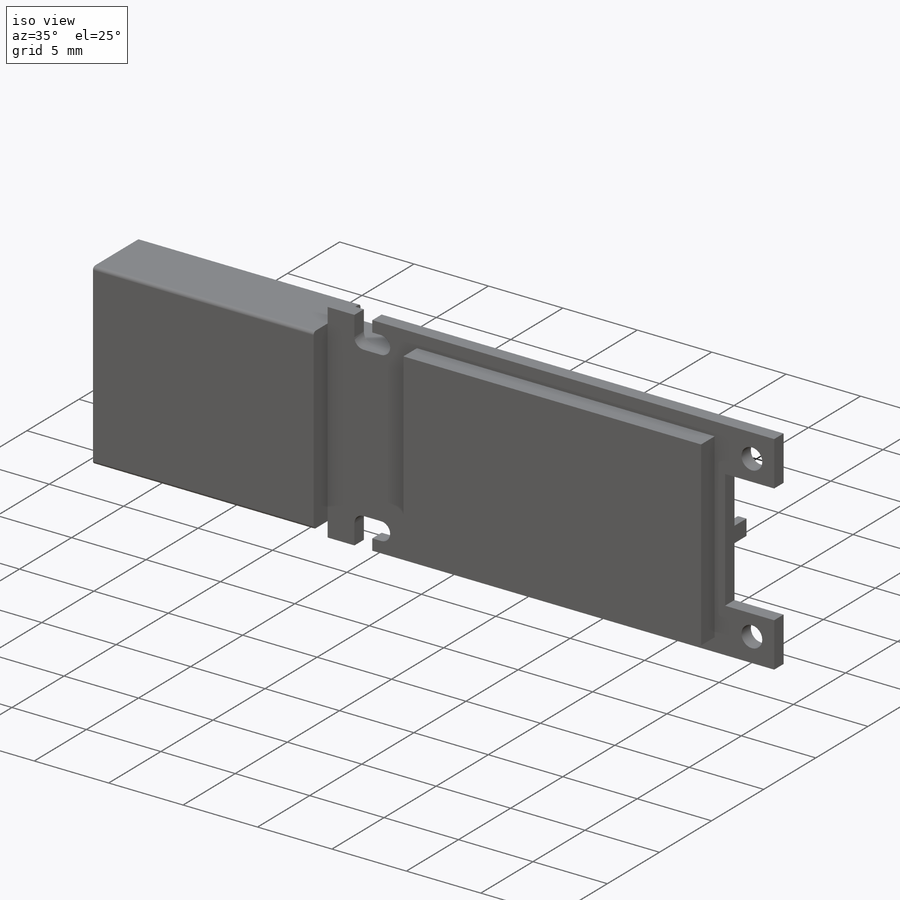
[diagram: iso view]
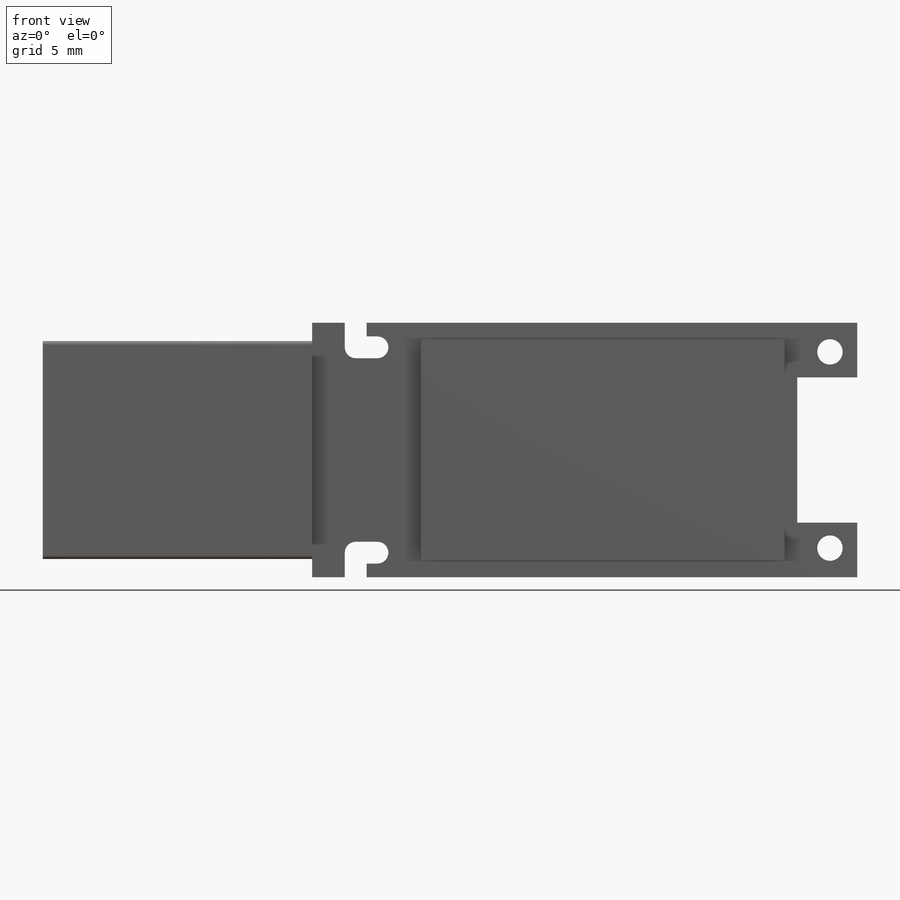
[diagram: front view]
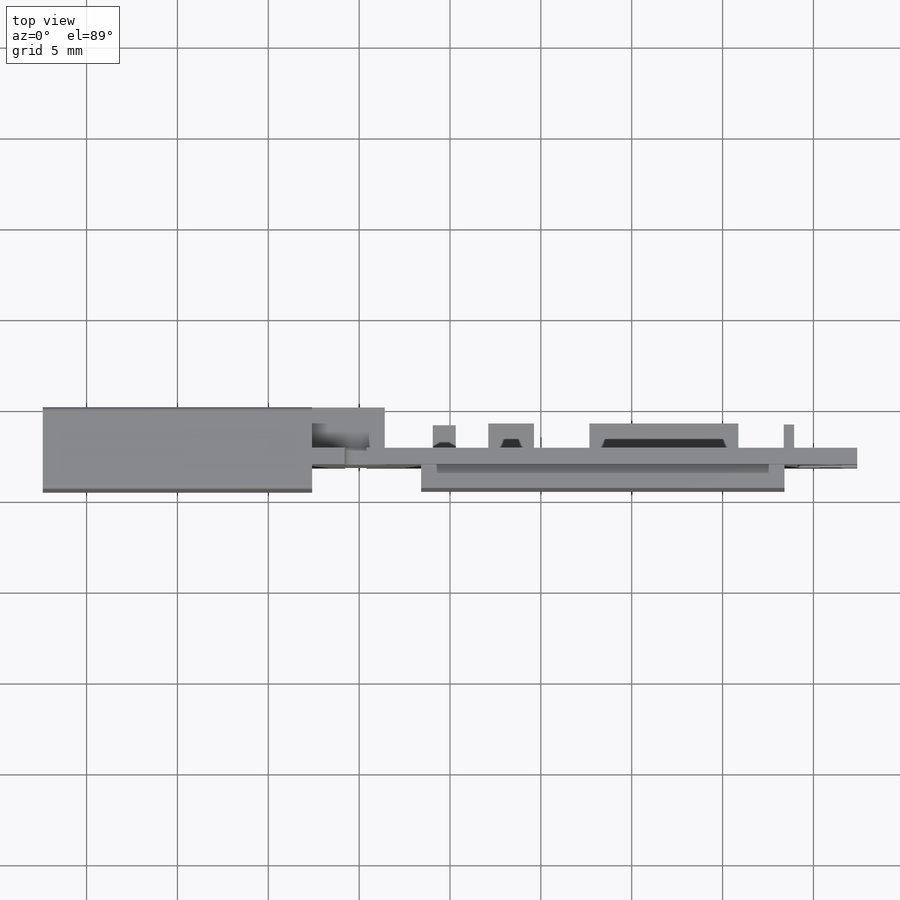
[diagram: top view]
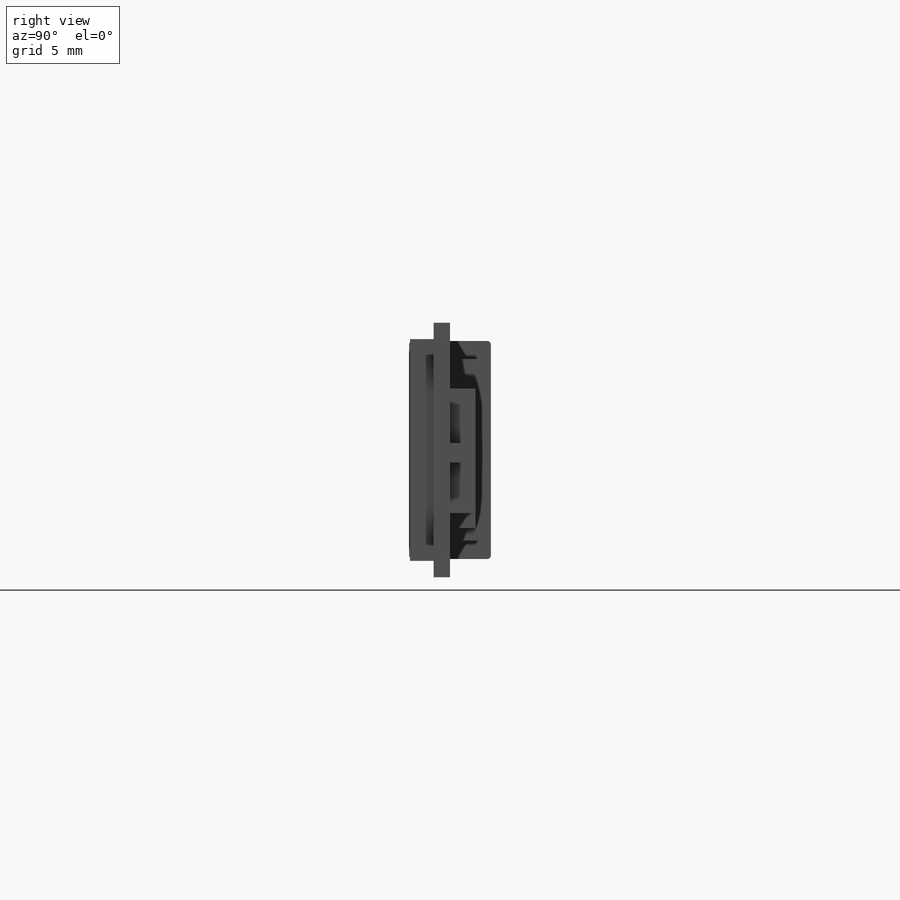
[diagram: right view]
SOLIDWORKS PART (.sldprt)
format: sldprt  version: not decoded by parser v0  size: 363,520 bytes
history: native  units: mm
features: sketch x9, extrude x5, plane x4, cut_extrude x4, material x1, fillet x1 (+8 scaffold rows collapsed)
feature tree (32):
  scaffold x8  (default folders/planes/origin — collapsed)
  material  "Matériau <non spécifié>"
  plane  "Plan de face"
  plane  "Plan de dessus"
  plane  "Plan de droite"
  sketch  "Esquisse1"  dims[D1=14.82mm D2=12.0mm]
  extrude  "Boss.-Extru.1"  Depth=4.5mm
  sketch  "Esquisse2"  dims[D1=2.0mm D2=0.3mm D3=0.3mm D4=0.3mm]
  cut_extrude  "Enlèv. mat.-Extru.1"  Depth=9mm
  fillet  "Congé1"  Radius=0.2mm
  plane  "Plan1"
  sketch  "Esquisse3"  dims[D1=14.0mm D2=30.0mm]
  extrude  "Boss.-Extru.2"  Depth=0.9mm
  sketch  "Esquisse4"  dims[D1=2.0mm D2=2.5mm D3=1.8mm D4=5.0mm]
  cut_extrude  "Enlèv. mat.-Extru.2"  [1 undecoded]
  sketch  "Esquisse5"  dims[c1.D4=1.4mm c1.D1=8.0mm c1.D2=3.3mm c1.D3=1.5mm c1.D5=10.8mm c2.D3=28.5mm c2.D6=3.0mm c2.D7=1.2mm c2.D8=1.2mm c2.D9=11.3mm]
  cut_extrude  "Enlèv. mat.-Extru.3"  [1 undecoded]
  sketch  "Esquisse6"  dims[D1=12.2mm D2=20.0mm D3=26.0mm]
  extrude  "Boss.-Extru.3"  Depth=1.3mm
  sketch  "Esquisse7"
  extrude  "Boss.-Extru.4"  Depth=1.4mm
  sketch  "Esquisse8"  dims[D1=10.0mm D2=4.0mm]
  extrude  "Boss.-Extru.5"  [1 undecoded]
  sketch  "Esquisse9"
  cut_extrude  "Enlèv. mat.-Extru.4"  [1 undecoded]
decode coverage: 13 of 19 modeling features carry decoded parameters
note: 4 parameter values undecoded
summary: no parameter record found for 4 features
note: suppression state not decoded; provenance and decode notes live in map.json
